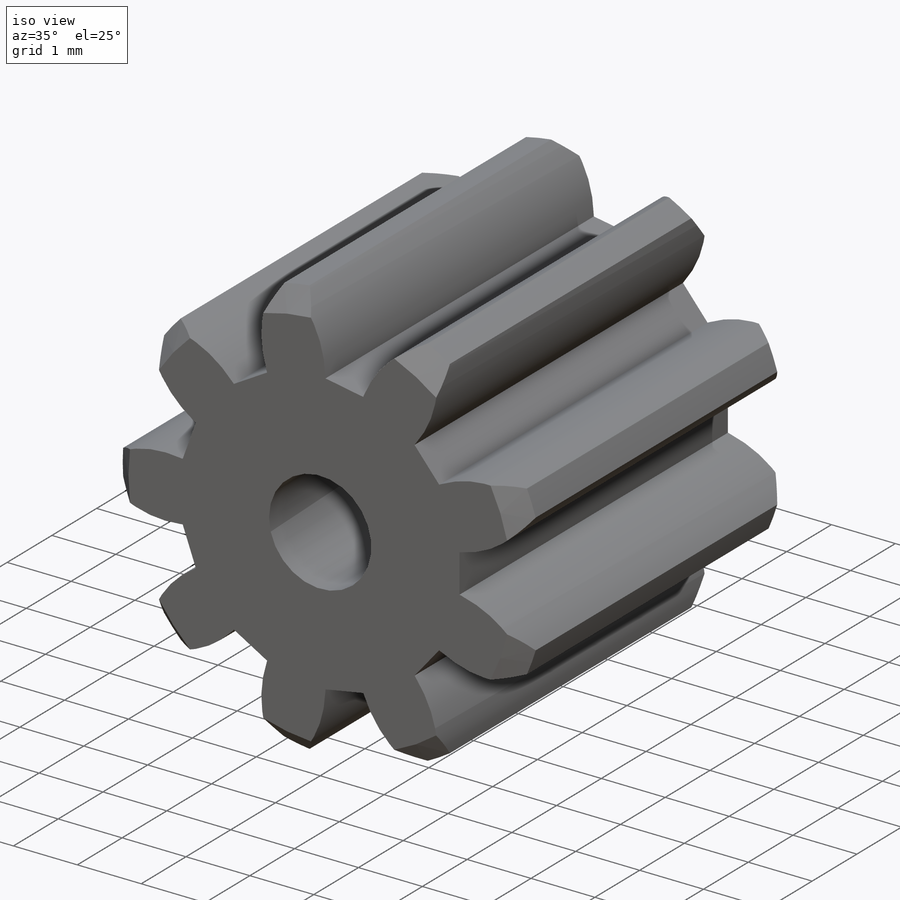
[diagram: iso view]
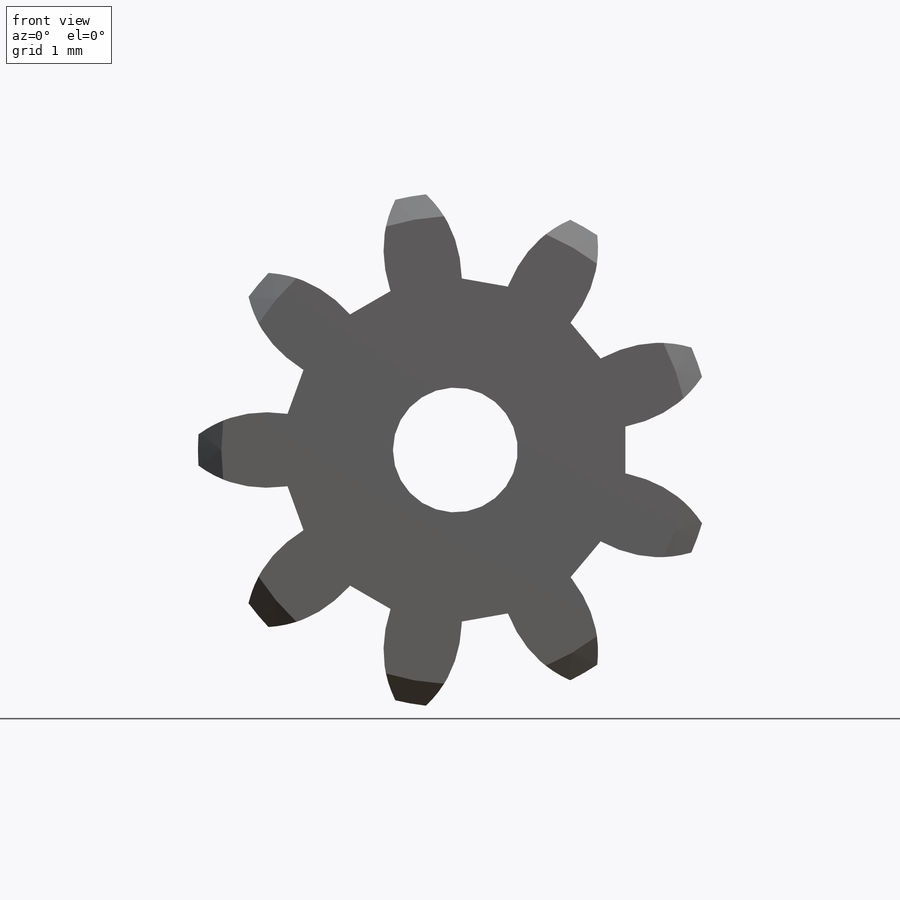
[diagram: front view]
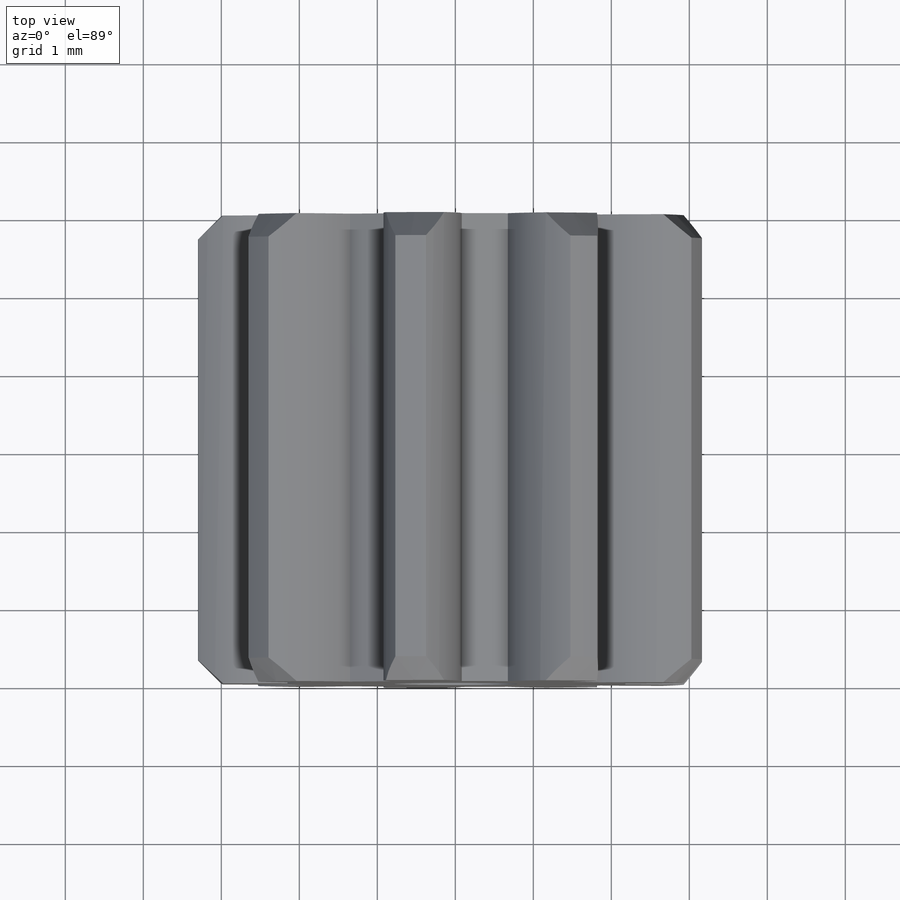
[diagram: top view]
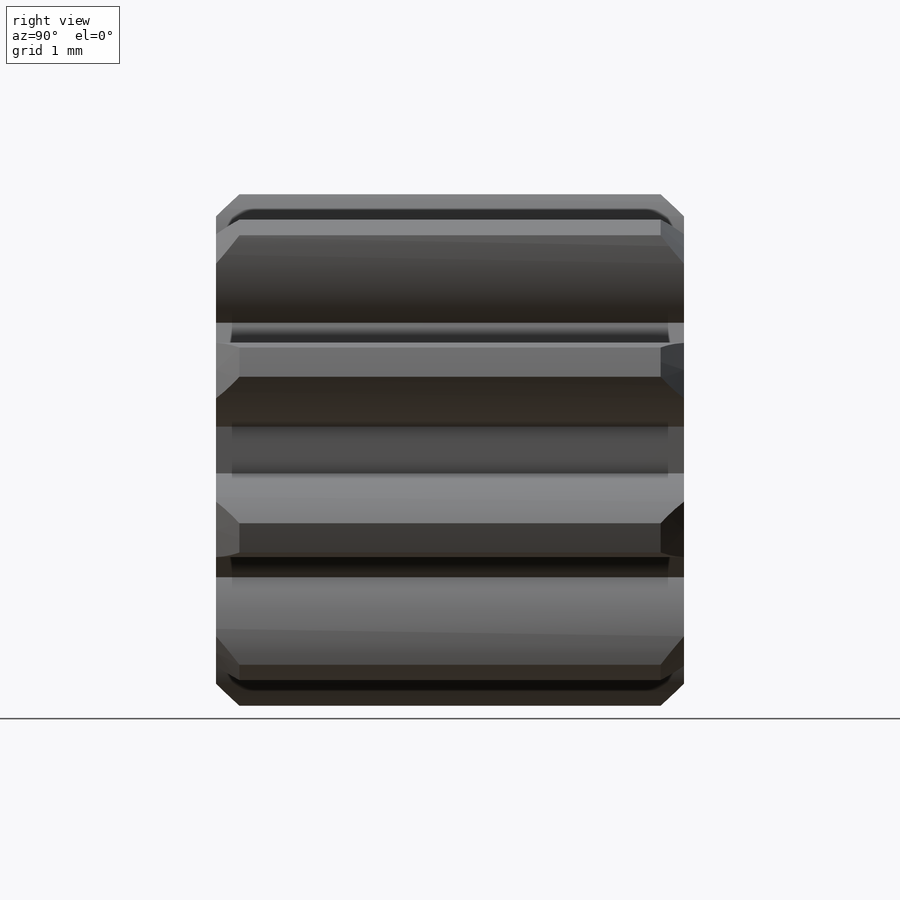
[diagram: right view]
SOLIDWORKS PART (.sldprt)
format: sldprt  version: not decoded by parser v0  size: 286,720 bytes
history: native  units: mm
features: plane x3, sketch x3, cut_extrude x2, material x1, extrude x1, chamfer x1, pattern_circular x1 (+10 scaffold rows collapsed)
feature tree (22):
  scaffold x10  (default folders/planes/origin — collapsed)
  material  "材质 <未指定>"
  plane  "前视基准面"
  plane  "上视基准面"
  plane  "右视基准面"
  sketch  "草图1"  dims[D1=6.6mm]
  extrude  "凸台-拉伸1"  Depth=6mm
  chamfer  "倒角1"  Distance=0.3mm Angle=45deg
  sketch  "草图2"  dims[c1.D1=~0.402387mm c2.D1=90.0deg c3.D1=~0.402387mm c4.D1=90.0deg c5.D1=~0.402387mm c6.D1=90.0deg c7.D1=0.6mm c7.D2=2.8mm c7.D3=1.2mm c7.D4=1.2mm]
  cut_extrude  "切除-拉伸1"  [1 undecoded]
  pattern_circular  "阵列(圆周)1"  Count=9 Angle=40deg
  sketch  "草图3"  dims[D1=1.6mm]
  cut_extrude  "切除-拉伸2"  [1 undecoded]
decode coverage: 6 of 8 modeling features carry decoded parameters
note: ~ marks probable driven/reference dimensions
note: 2 parameter values undecoded
note: suppression state not decoded; provenance and decode notes live in map.json
